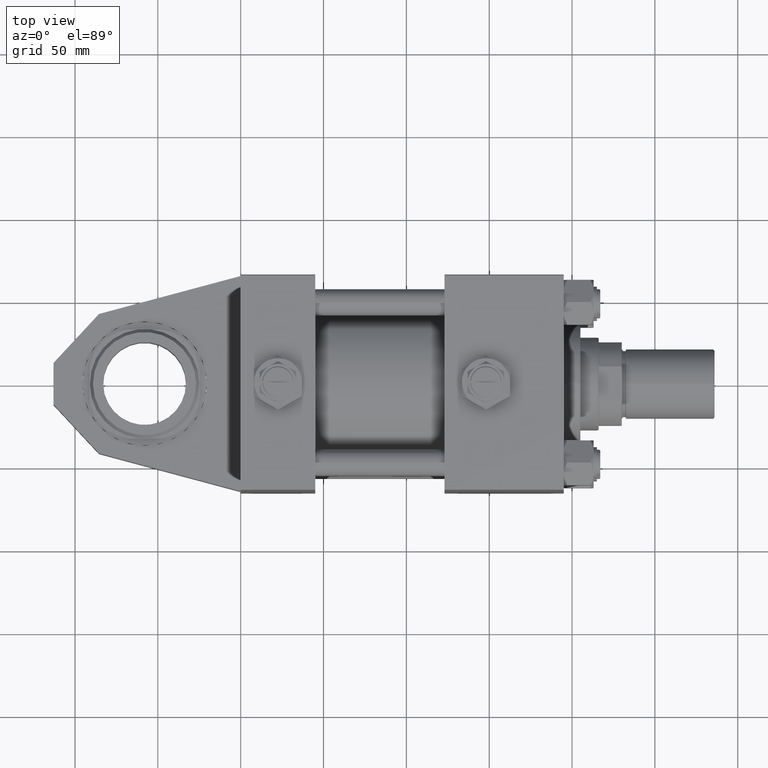
[diagram: clean part render]
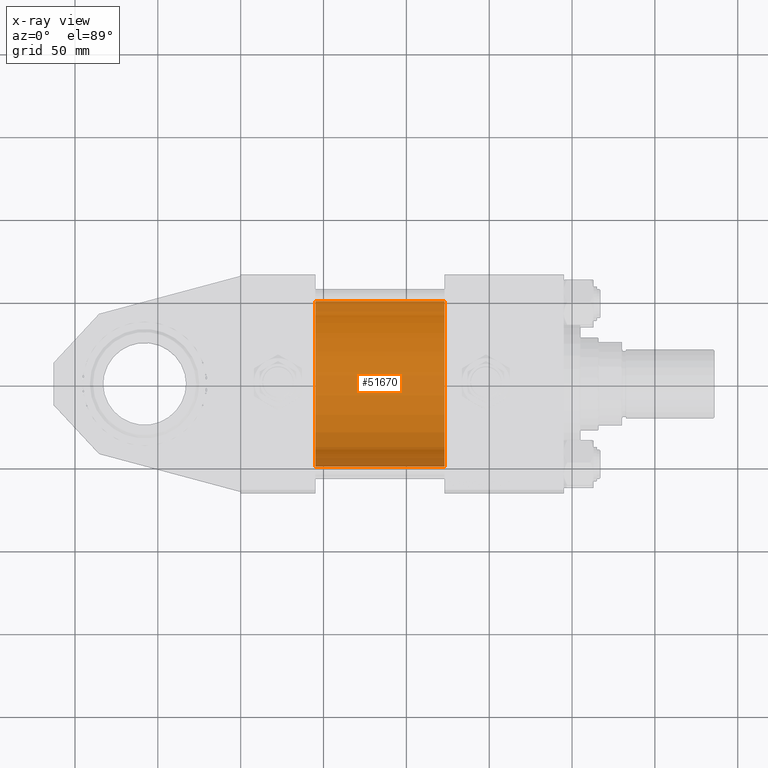
[diagram: x-ray — body ghosted, one internal face saturated and labeled with its STEP entity id]
A machine part, top view, then the same camera in x-ray: the body is ghosted and one INTERNAL B-rep face — a face not visible from any outside direction — is saturated and labeled: STEP entity #51670.
In plain terms, the highlighted cylindrical surface (partial cylindrical patch) has radius 50 mm, axis along (-1, 0, -0).
Its self-contained STEP definition (entity closure, byte-faithful):
#505 = CIRCLE ( 'NONE', #4761, 50.00000000000000000 ) ;
#693 = DIRECTION ( 'NONE',  ( -1.000000000000000000, -0.000000000000000000, -0.000000000000000000 ) ) ;
#711 = DIRECTION ( 'NONE',  ( 1.000000000000000000, 0.000000000000000000, 0.000000000000000000 ) ) ;
#1405 = ORIENTED_EDGE ( 'NONE', *, *, #37635, .F. ) ;
#2557 = CIRCLE ( 'NONE', #30940, 50.00000000000000000 ) ;
#4257 = DIRECTION ( 'NONE',  ( -1.000000000000000000, -0.000000000000000000, -0.000000000000000000 ) ) ;
#4761 = AXIS2_PLACEMENT_3D ( 'NONE', #41717, #45478, #17503 ) ;
#4923 = ORIENTED_EDGE ( 'NONE', *, *, #12694, .F. ) ;
#5254 = CARTESIAN_POINT ( 'NONE',  ( 123.0000000000000000, -2.602085213965210642E-15, 0.000000000000000000 ) ) ;
#8304 = LINE ( 'NONE', #41110, #52584 ) ;
#8440 = EDGE_LOOP ( 'NONE', ( #16058, #33460, #1405, #4923 ) ) ;
#10973 = EDGE_CURVE ( 'NONE', #25666, #50419, #8304, .T. ) ;
#11184 = AXIS2_PLACEMENT_3D ( 'NONE', #5254, #693, #38324 ) ;
#12694 = EDGE_CURVE ( 'NONE', #27347, #29167, #44227, .T. ) ;
#16058 = ORIENTED_EDGE ( 'NONE', *, *, #32610, .T. ) ;
#17503 = DIRECTION ( 'NONE',  ( 0.000000000000000000, 0.000000000000000000, -1.000000000000000000 ) ) ;
#20563 = CARTESIAN_POINT ( 'NONE',  ( 123.0000000000000000, -2.602085213965210642E-15, 50.00000000000000000 ) ) ;
#25666 = VERTEX_POINT ( 'NONE', #49279 ) ;
#25703 = CYLINDRICAL_SURFACE ( 'NONE', #11184, 50.00000000000000000 ) ;
#27347 = VERTEX_POINT ( 'NONE', #52537 ) ;
#29167 = VERTEX_POINT ( 'NONE', #38032 ) ;
#29484 = FACE_OUTER_BOUND ( 'NONE', #8440, .T. ) ;
#30940 = AXIS2_PLACEMENT_3D ( 'NONE', #45357, #711, #44820 ) ;
#32610 = EDGE_CURVE ( 'NONE', #27347, #25666, #2557, .T. ) ;
#33460 = ORIENTED_EDGE ( 'NONE', *, *, #10973, .T. ) ;
#37635 = EDGE_CURVE ( 'NONE', #29167, #50419, #505, .T. ) ;
#38032 = CARTESIAN_POINT ( 'NONE',  ( 45.00000000000000000, -2.602085213965210642E-15, 50.00000000000000000 ) ) ;
#38324 = DIRECTION ( 'NONE',  ( 0.000000000000000000, 0.000000000000000000, 1.000000000000000000 ) ) ;
#41110 = CARTESIAN_POINT ( 'NONE',  ( 123.0000000000000000, 3.521148781771555838E-15, -50.00000000000000000 ) ) ;
#41717 = CARTESIAN_POINT ( 'NONE',  ( 45.00000000000000000, -2.602085213965210642E-15, 0.000000000000000000 ) ) ;
#43316 = CARTESIAN_POINT ( 'NONE',  ( 45.00000000000000000, 3.521148781771555838E-15, -50.00000000000000000 ) ) ;
#44227 = LINE ( 'NONE', #20563, #44907 ) ;
#44820 = DIRECTION ( 'NONE',  ( 0.000000000000000000, 0.000000000000000000, -1.000000000000000000 ) ) ;
#44907 = VECTOR ( 'NONE', #48526, 1000.000000000000000 ) ;
#45357 = CARTESIAN_POINT ( 'NONE',  ( 123.0000000000000000, -2.602085213965210642E-15, 0.000000000000000000 ) ) ;
#45478 = DIRECTION ( 'NONE',  ( 1.000000000000000000, 0.000000000000000000, 0.000000000000000000 ) ) ;
#48526 = DIRECTION ( 'NONE',  ( -1.000000000000000000, -0.000000000000000000, -0.000000000000000000 ) ) ;
#49279 = CARTESIAN_POINT ( 'NONE',  ( 123.0000000000000000, 3.521148781771555838E-15, -50.00000000000000000 ) ) ;
#50419 = VERTEX_POINT ( 'NONE', #43316 ) ;
#51670 = ADVANCED_FACE ( 'NONE', ( #29484 ), #25703, .F. ) ;
#52537 = CARTESIAN_POINT ( 'NONE',  ( 123.0000000000000000, -2.602085213965210642E-15, 50.00000000000000000 ) ) ;
#52584 = VECTOR ( 'NONE', #4257, 1000.000000000000000 ) ;